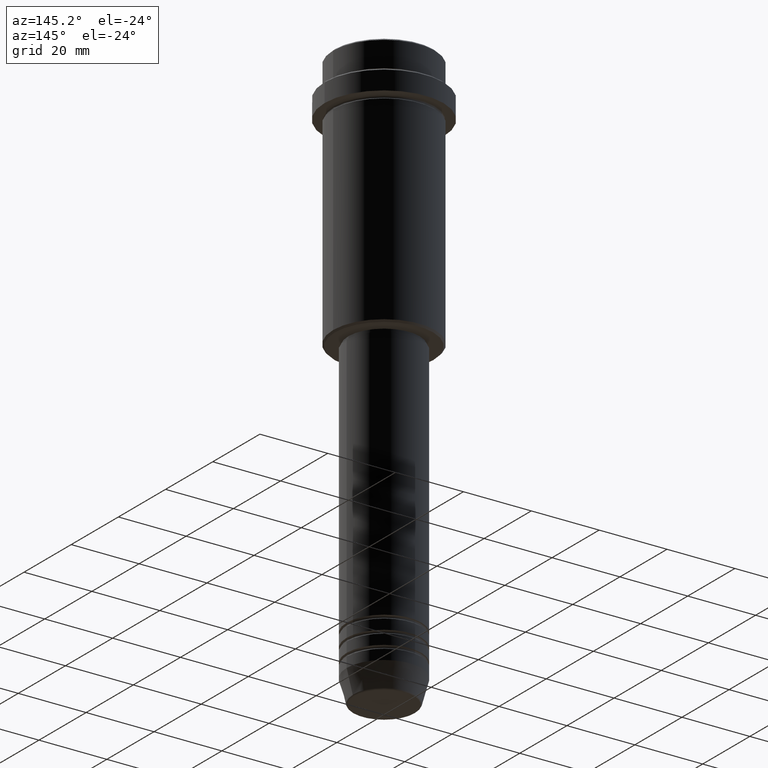
[diagram: clean part render]
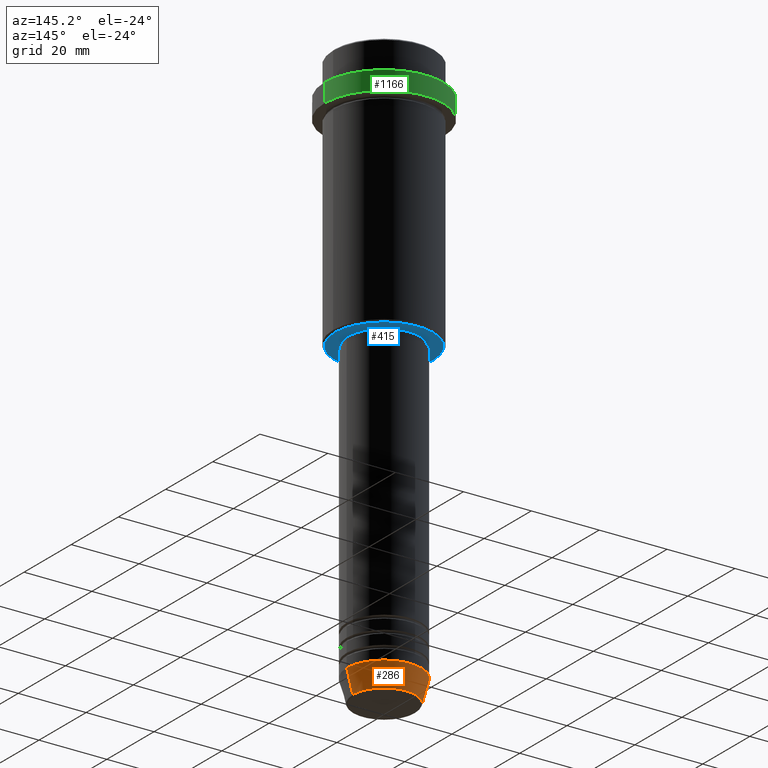
[diagram: same view with three faces highlighted in distinct colors, each labeled with its STEP entity id]
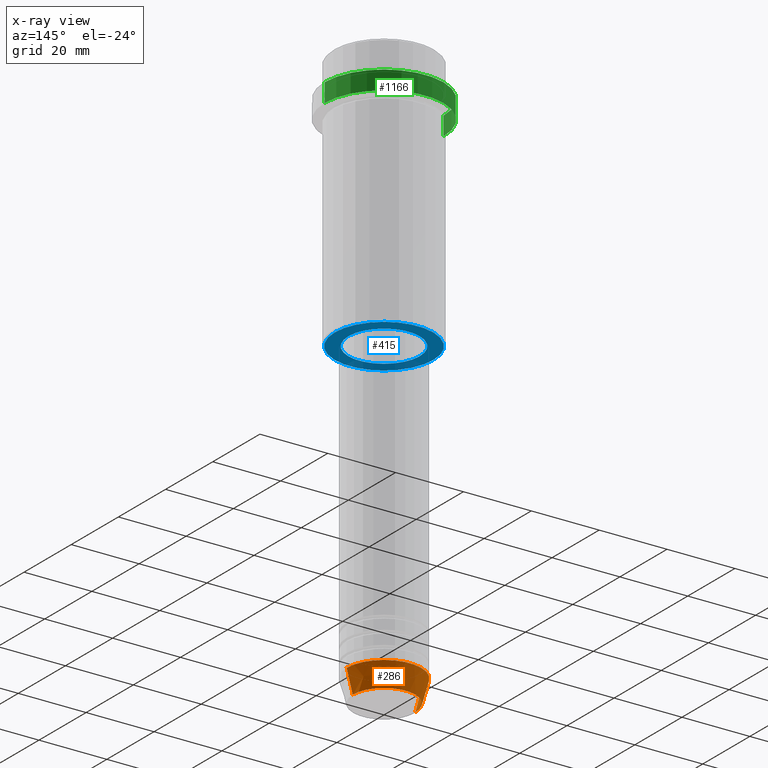
[diagram: x-ray of the same camera — body ghosted, the three highlighted faces saturated]
A machine part, auxiliary view with three faces highlighted in distinct colors.
The next image is the same camera in x-ray (body ghosted, the three faces saturated) — at least one of them is partly hidden behind the body in this view.
Their STEP definitions:

[orange] entity #286 — the highlighted conical surface has half-angle 15 deg.
#24 = DIRECTION ( 'NONE',  ( 0.2588190451025213501, 0.000000000000000000, 0.9659258262890680902 ) ) ;
#32 = VERTEX_POINT ( 'NONE', #793 ) ;
#39 = CARTESIAN_POINT ( 'NONE',  ( 0.000000000000000000, 0.000000000000000000, -163.0000000000000000 ) ) ;
#213 = DIRECTION ( 'NONE',  ( 1.000000000000000000, 0.000000000000000000, 0.000000000000000000 ) ) ;
#286 = ADVANCED_FACE ( 'NONE', ( #646 ), #535, .T. ) ;
#310 = DIRECTION ( 'NONE',  ( -0.2588190451025213501, 3.169619151431772337E-17, 0.9659258262890680902 ) ) ;
#328 = EDGE_CURVE ( 'NONE', #764, #32, #887, .T. ) ;
#336 = DIRECTION ( 'NONE',  ( -0.000000000000000000, -0.000000000000000000, 1.000000000000000000 ) ) ;
#352 = AXIS2_PLACEMENT_3D ( 'NONE', #767, #1082, #1179 ) ;
#366 = ORIENTED_EDGE ( 'NONE', *, *, #1029, .F. ) ;
#478 = VERTEX_POINT ( 'NONE', #1126 ) ;
#492 = DIRECTION ( 'NONE',  ( 1.000000000000000000, 0.000000000000000000, 0.000000000000000000 ) ) ;
#522 = CARTESIAN_POINT ( 'NONE',  ( -11.00000000000000000, 1.347111479062088405E-15, -163.0000000000000000 ) ) ;
#535 = CONICAL_SURFACE ( 'NONE', #860, 11.00000000000000000, 0.2617993877991500740 ) ;
#552 = VECTOR ( 'NONE', #310, 1000.000000000000000 ) ;
#618 = VECTOR ( 'NONE', #24, 1000.000000000000000 ) ;
#642 = CIRCLE ( 'NONE', #662, 11.00000000000000000 ) ;
#646 = FACE_OUTER_BOUND ( 'NONE', #1207, .T. ) ;
#662 = AXIS2_PLACEMENT_3D ( 'NONE', #39, #336, #492 ) ;
#746 = ORIENTED_EDGE ( 'NONE', *, *, #328, .T. ) ;
#754 = CARTESIAN_POINT ( 'NONE',  ( 0.000000000000000000, 0.000000000000000000, -163.0000000000000000 ) ) ;
#764 = VERTEX_POINT ( 'NONE', #880 ) ;
#767 = CARTESIAN_POINT ( 'NONE',  ( 0.000000000000000000, 0.000000000000000000, -169.6294095225512706 ) ) ;
#793 = CARTESIAN_POINT ( 'NONE',  ( -9.223655072137189492, 1.238341722557647202E-15, -169.6294095225512706 ) ) ;
#835 = LINE ( 'NONE', #522, #552 ) ;
#860 = AXIS2_PLACEMENT_3D ( 'NONE', #754, #1087, #213 ) ;
#880 = CARTESIAN_POINT ( 'NONE',  ( 9.223655072137189492, 0.000000000000000000, -169.6294095225512706 ) ) ;
#887 = CIRCLE ( 'NONE', #352, 9.223655072137189492 ) ;
#921 = LINE ( 'NONE', #1084, #618 ) ;
#1015 = EDGE_CURVE ( 'NONE', #32, #1247, #835, .T. ) ;
#1029 = EDGE_CURVE ( 'NONE', #478, #1247, #642, .T. ) ;
#1082 = DIRECTION ( 'NONE',  ( -0.000000000000000000, -0.000000000000000000, 1.000000000000000000 ) ) ;
#1084 = CARTESIAN_POINT ( 'NONE',  ( 11.00000000000000000, 0.000000000000000000, -163.0000000000000000 ) ) ;
#1087 = DIRECTION ( 'NONE',  ( -0.000000000000000000, -0.000000000000000000, 1.000000000000000000 ) ) ;
#1118 = EDGE_CURVE ( 'NONE', #764, #478, #921, .T. ) ;
#1126 = CARTESIAN_POINT ( 'NONE',  ( 11.00000000000000000, 0.000000000000000000, -163.0000000000000000 ) ) ;
#1179 = DIRECTION ( 'NONE',  ( 1.000000000000000000, 0.000000000000000000, 0.000000000000000000 ) ) ;
#1207 = EDGE_LOOP ( 'NONE', ( #746, #1403, #366, #1342 ) ) ;
#1240 = CARTESIAN_POINT ( 'NONE',  ( -11.00000000000000000, 1.347111479062088405E-15, -163.0000000000000000 ) ) ;
#1247 = VERTEX_POINT ( 'NONE', #1240 ) ;
#1342 = ORIENTED_EDGE ( 'NONE', *, *, #1118, .F. ) ;
#1403 = ORIENTED_EDGE ( 'NONE', *, *, #1015, .T. ) ;

[blue] entity #415 — the highlighted planar face has unit normal (0, 0, -1).
#13 = AXIS2_PLACEMENT_3D ( 'NONE', #1290, #982, #760 ) ;
#29 = ORIENTED_EDGE ( 'NONE', *, *, #1090, .T. ) ;
#59 = AXIS2_PLACEMENT_3D ( 'NONE', #370, #908, #570 ) ;
#73 = ORIENTED_EDGE ( 'NONE', *, *, #1028, .T. ) ;
#77 = CARTESIAN_POINT ( 'NONE',  ( 14.49999999999999645, 0.000000000000000000, -75.00000000000001421 ) ) ;
#85 = AXIS2_PLACEMENT_3D ( 'NONE', #1060, #753, #1171 ) ;
#136 = PLANE ( 'NONE',  #59 ) ;
#217 = DIRECTION ( 'NONE',  ( -0.000000000000000000, -0.000000000000000000, 1.000000000000000000 ) ) ;
#244 = FACE_OUTER_BOUND ( 'NONE', #320, .T. ) ;
#247 = EDGE_LOOP ( 'NONE', ( #29, #1089 ) ) ;
#267 = CARTESIAN_POINT ( 'NONE',  ( -14.49999999999999645, 1.806354028742345802E-15, -75.00000000000001421 ) ) ;
#277 = EDGE_CURVE ( 'NONE', #447, #1027, #637, .T. ) ;
#320 = EDGE_LOOP ( 'NONE', ( #73, #783 ) ) ;
#344 = CIRCLE ( 'NONE', #749, 10.49999999999999289 ) ;
#370 = CARTESIAN_POINT ( 'NONE',  ( 0.000000000000000000, 15.00000000000000000, -75.00000000000001421 ) ) ;
#415 = ADVANCED_FACE ( 'NONE', ( #244, #1339 ), #136, .T. ) ;
#447 = VERTEX_POINT ( 'NONE', #267 ) ;
#480 = EDGE_CURVE ( 'NONE', #1305, #715, #344, .T. ) ;
#570 = DIRECTION ( 'NONE',  ( -1.000000000000000000, 0.000000000000000000, -0.000000000000000000 ) ) ;
#586 = DIRECTION ( 'NONE',  ( -0.000000000000000000, -0.000000000000000000, 1.000000000000000000 ) ) ;
#619 = AXIS2_PLACEMENT_3D ( 'NONE', #1194, #217, #653 ) ;
#631 = CARTESIAN_POINT ( 'NONE',  ( 10.49999999999999289, 0.000000000000000000, -75.00000000000001421 ) ) ;
#637 = CIRCLE ( 'NONE', #13, 14.49999999999999645 ) ;
#653 = DIRECTION ( 'NONE',  ( 1.000000000000000000, 0.000000000000000000, 0.000000000000000000 ) ) ;
#715 = VERTEX_POINT ( 'NONE', #631 ) ;
#749 = AXIS2_PLACEMENT_3D ( 'NONE', #1355, #586, #1013 ) ;
#753 = DIRECTION ( 'NONE',  ( 0.000000000000000000, 0.000000000000000000, -1.000000000000000000 ) ) ;
#760 = DIRECTION ( 'NONE',  ( -1.000000000000000000, 0.000000000000000000, 0.000000000000000000 ) ) ;
#783 = ORIENTED_EDGE ( 'NONE', *, *, #277, .T. ) ;
#908 = DIRECTION ( 'NONE',  ( 0.000000000000000000, 0.000000000000000000, -1.000000000000000000 ) ) ;
#982 = DIRECTION ( 'NONE',  ( 0.000000000000000000, 0.000000000000000000, -1.000000000000000000 ) ) ;
#1013 = DIRECTION ( 'NONE',  ( 1.000000000000000000, 0.000000000000000000, 0.000000000000000000 ) ) ;
#1027 = VERTEX_POINT ( 'NONE', #77 ) ;
#1028 = EDGE_CURVE ( 'NONE', #1027, #447, #1259, .T. ) ;
#1060 = CARTESIAN_POINT ( 'NONE',  ( 0.000000000000000000, 0.000000000000000000, -75.00000000000001421 ) ) ;
#1089 = ORIENTED_EDGE ( 'NONE', *, *, #480, .T. ) ;
#1090 = EDGE_CURVE ( 'NONE', #715, #1305, #1368, .T. ) ;
#1154 = CARTESIAN_POINT ( 'NONE',  ( -10.49999999999999289, 1.285879139104720042E-15, -75.00000000000001421 ) ) ;
#1171 = DIRECTION ( 'NONE',  ( -1.000000000000000000, 0.000000000000000000, 0.000000000000000000 ) ) ;
#1194 = CARTESIAN_POINT ( 'NONE',  ( 0.000000000000000000, 0.000000000000000000, -75.00000000000001421 ) ) ;
#1259 = CIRCLE ( 'NONE', #85, 14.49999999999999645 ) ;
#1290 = CARTESIAN_POINT ( 'NONE',  ( 0.000000000000000000, 0.000000000000000000, -75.00000000000001421 ) ) ;
#1305 = VERTEX_POINT ( 'NONE', #1154 ) ;
#1339 = FACE_BOUND ( 'NONE', #247, .T. ) ;
#1355 = CARTESIAN_POINT ( 'NONE',  ( 0.000000000000000000, 0.000000000000000000, -75.00000000000001421 ) ) ;
#1368 = CIRCLE ( 'NONE', #619, 10.49999999999999289 ) ;

[green] entity #1166 — the highlighted cylindrical surface (partial cylindrical patch) has radius 17.5 mm, axis along (-0, -0, 1).
#10 = DIRECTION ( 'NONE',  ( -0.000000000000000000, -0.000000000000000000, 1.000000000000000000 ) ) ;
#107 = ORIENTED_EDGE ( 'NONE', *, *, #609, .T. ) ;
#118 = ORIENTED_EDGE ( 'NONE', *, *, #924, .F. ) ;
#250 = FACE_OUTER_BOUND ( 'NONE', #435, .T. ) ;
#333 = CARTESIAN_POINT ( 'NONE',  ( 17.50000000000000000, 0.000000000000000000, -9.500000000000000000 ) ) ;
#387 = CARTESIAN_POINT ( 'NONE',  ( -17.50000000000000000, 2.143131898507868248E-15, -9.500000000000000000 ) ) ;
#413 = DIRECTION ( 'NONE',  ( -0.000000000000000000, -0.000000000000000000, 1.000000000000000000 ) ) ;
#423 = CARTESIAN_POINT ( 'NONE',  ( 17.50000000000000000, 0.000000000000000000, -15.00000000000000000 ) ) ;
#435 = EDGE_LOOP ( 'NONE', ( #992, #107, #1124, #118 ) ) ;
#458 = CARTESIAN_POINT ( 'NONE',  ( -17.50000000000000000, 2.143131898507868248E-15, -15.00000000000000000 ) ) ;
#495 = VERTEX_POINT ( 'NONE', #458 ) ;
#505 = CARTESIAN_POINT ( 'NONE',  ( 0.000000000000000000, 0.000000000000000000, 0.000000000000000000 ) ) ;
#523 = CYLINDRICAL_SURFACE ( 'NONE', #865, 17.50000000000000000 ) ;
#531 = AXIS2_PLACEMENT_3D ( 'NONE', #1178, #1313, #771 ) ;
#609 = EDGE_CURVE ( 'NONE', #495, #1055, #1359, .T. ) ;
#632 = DIRECTION ( 'NONE',  ( 1.000000000000000000, 0.000000000000000000, 0.000000000000000000 ) ) ;
#742 = DIRECTION ( 'NONE',  ( 1.000000000000000000, 0.000000000000000000, 0.000000000000000000 ) ) ;
#771 = DIRECTION ( 'NONE',  ( 1.000000000000000000, 0.000000000000000000, 0.000000000000000000 ) ) ;
#778 = CARTESIAN_POINT ( 'NONE',  ( 17.50000000000000000, 0.000000000000000000, 0.000000000000000000 ) ) ;
#787 = EDGE_CURVE ( 'NONE', #1055, #870, #1367, .T. ) ;
#865 = AXIS2_PLACEMENT_3D ( 'NONE', #505, #1042, #632 ) ;
#870 = VERTEX_POINT ( 'NONE', #333 ) ;
#924 = EDGE_CURVE ( 'NONE', #1380, #870, #989, .T. ) ;
#938 = AXIS2_PLACEMENT_3D ( 'NONE', #1191, #413, #742 ) ;
#989 = LINE ( 'NONE', #778, #1344 ) ;
#992 = ORIENTED_EDGE ( 'NONE', *, *, #1353, .T. ) ;
#1036 = CARTESIAN_POINT ( 'NONE',  ( -17.50000000000000000, 2.143131898507868248E-15, 0.000000000000000000 ) ) ;
#1042 = DIRECTION ( 'NONE',  ( -0.000000000000000000, -0.000000000000000000, 1.000000000000000000 ) ) ;
#1055 = VERTEX_POINT ( 'NONE', #387 ) ;
#1116 = VECTOR ( 'NONE', #1158, 1000.000000000000000 ) ;
#1124 = ORIENTED_EDGE ( 'NONE', *, *, #787, .T. ) ;
#1158 = DIRECTION ( 'NONE',  ( -0.000000000000000000, -0.000000000000000000, 1.000000000000000000 ) ) ;
#1166 = ADVANCED_FACE ( 'NONE', ( #250 ), #523, .T. ) ;
#1178 = CARTESIAN_POINT ( 'NONE',  ( 0.000000000000000000, 0.000000000000000000, -9.500000000000000000 ) ) ;
#1191 = CARTESIAN_POINT ( 'NONE',  ( 0.000000000000000000, 0.000000000000000000, -15.00000000000000000 ) ) ;
#1238 = CIRCLE ( 'NONE', #938, 17.50000000000000000 ) ;
#1313 = DIRECTION ( 'NONE',  ( 0.000000000000000000, 0.000000000000000000, -1.000000000000000000 ) ) ;
#1344 = VECTOR ( 'NONE', #10, 1000.000000000000000 ) ;
#1353 = EDGE_CURVE ( 'NONE', #1380, #495, #1238, .T. ) ;
#1359 = LINE ( 'NONE', #1036, #1116 ) ;
#1367 = CIRCLE ( 'NONE', #531, 17.50000000000000000 ) ;
#1380 = VERTEX_POINT ( 'NONE', #423 ) ;